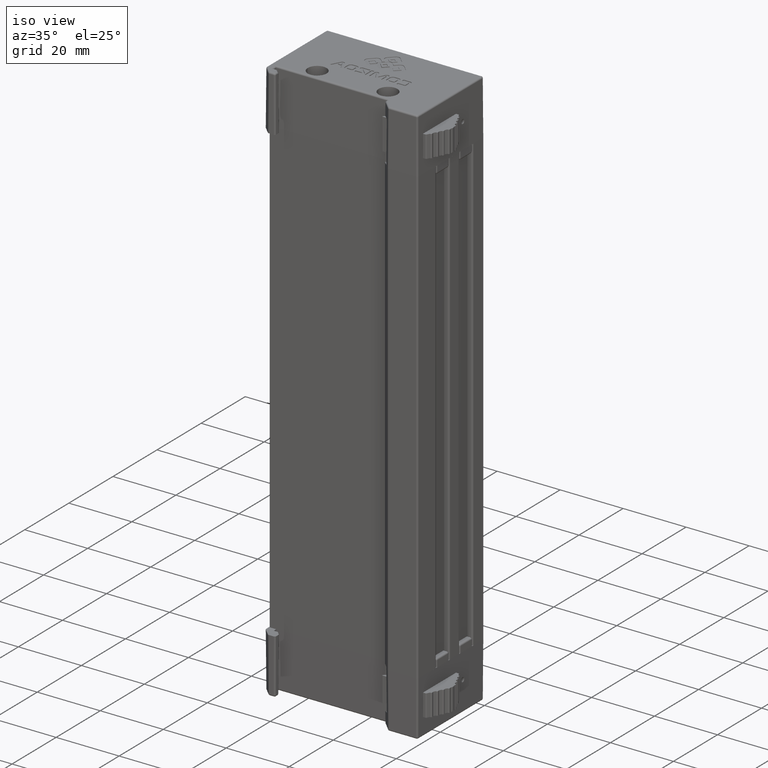
[diagram: clean part render]
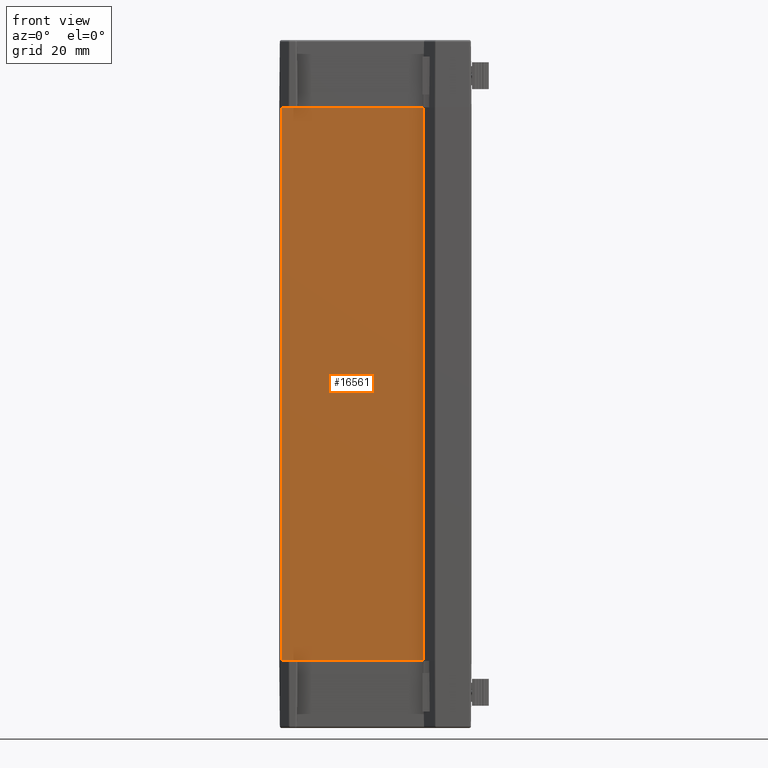
[diagram: tour spotlight — one face highlighted and labeled with its STEP entity id]
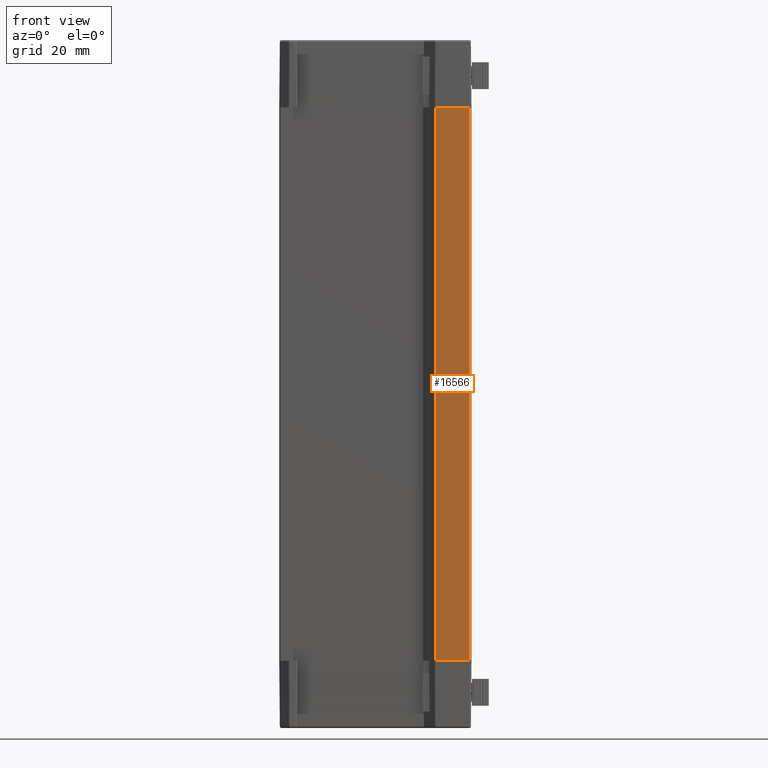
[diagram: tour spotlight — one face highlighted and labeled with its STEP entity id]
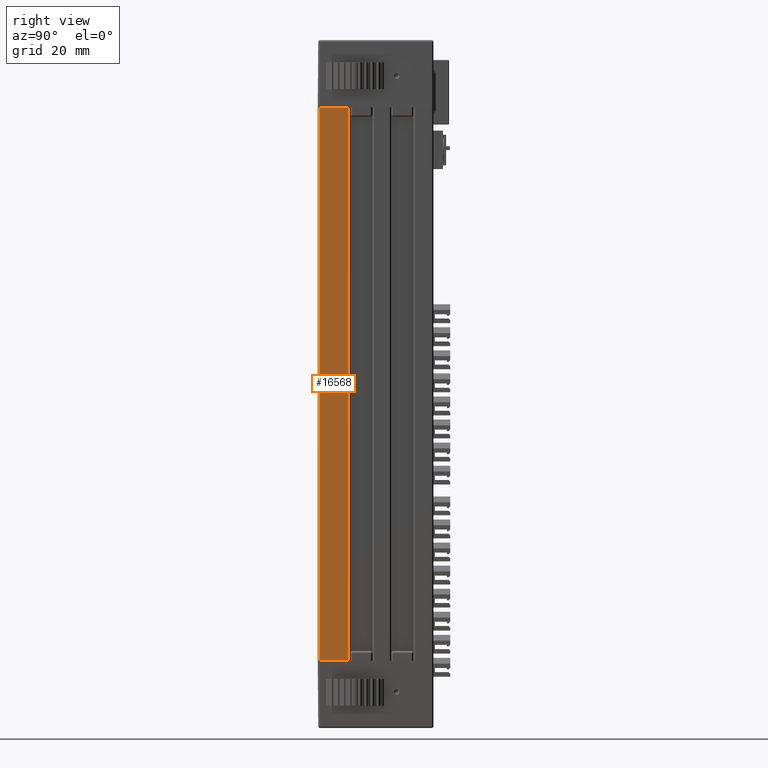
[diagram: tour spotlight — one face highlighted and labeled with its STEP entity id]
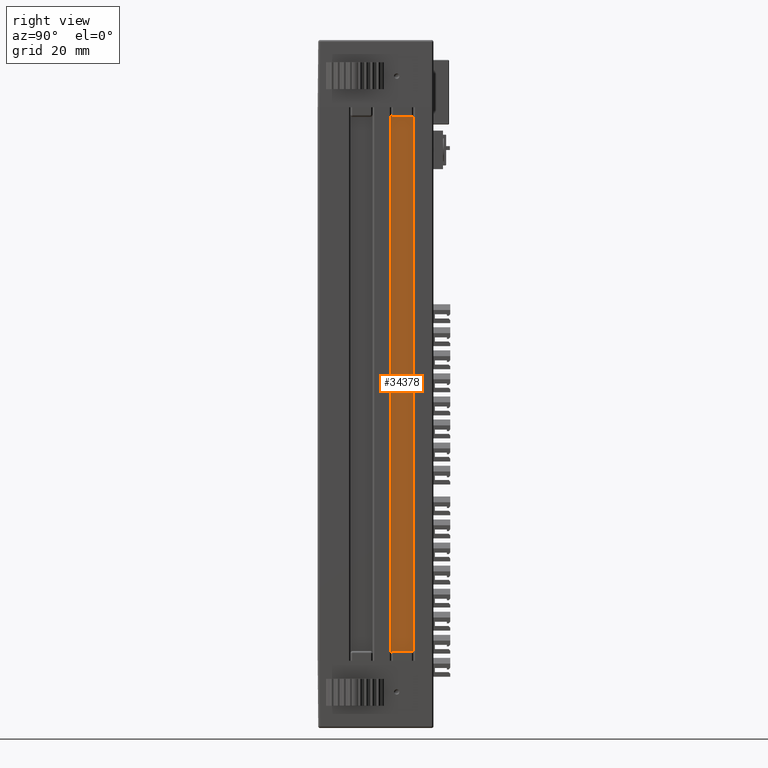
[diagram: tour spotlight — one face highlighted and labeled with its STEP entity id]
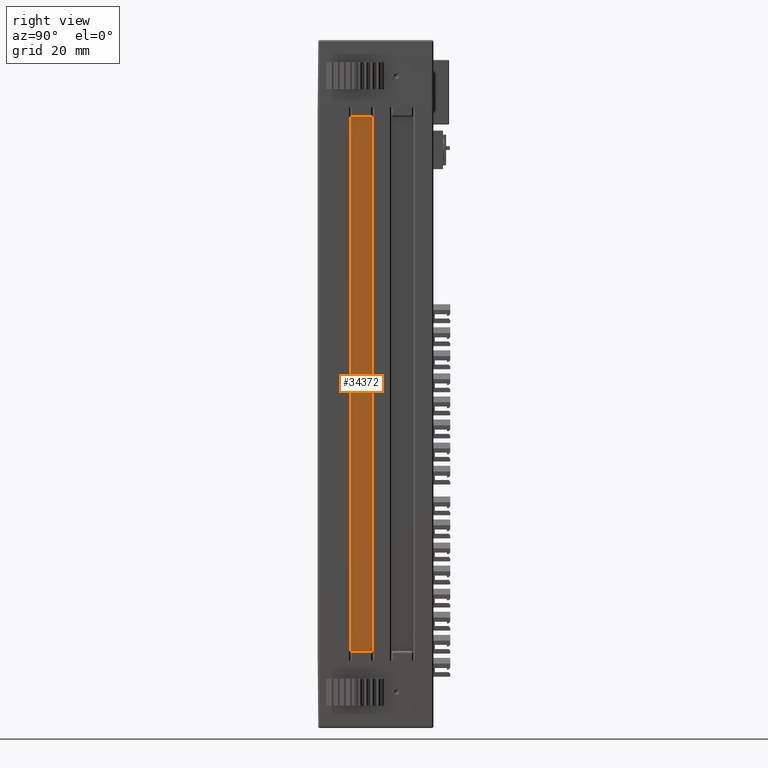
[diagram: tour spotlight — one face highlighted and labeled with its STEP entity id]
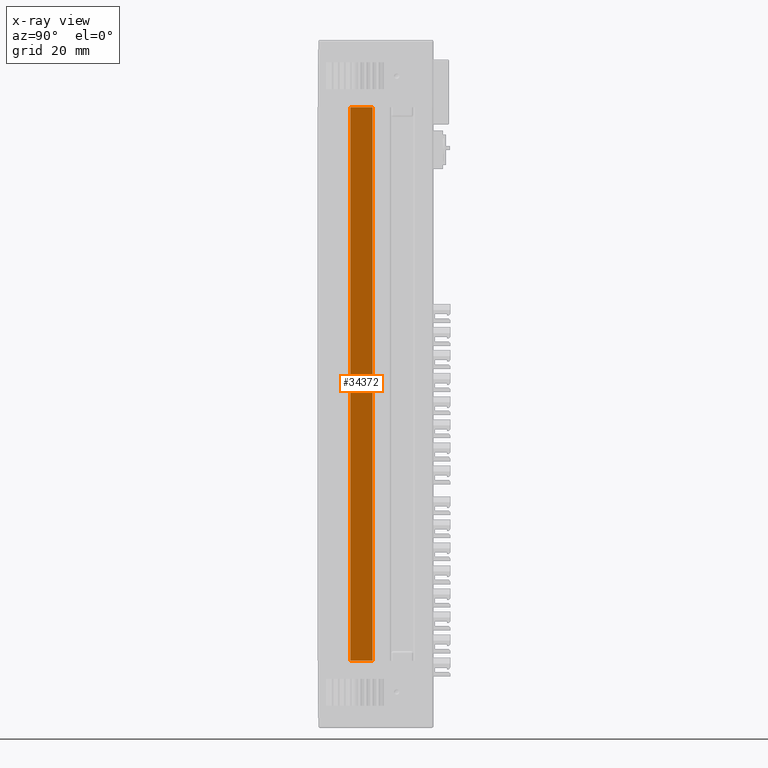
[diagram: x-ray of the same camera — body ghosted, this tour face saturated]
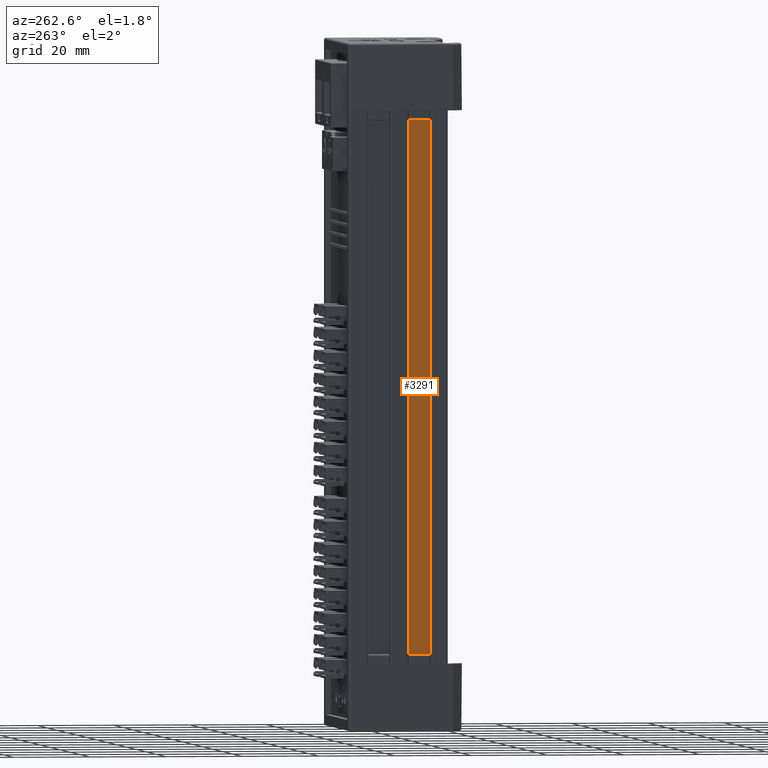
[diagram: tour spotlight — one face highlighted and labeled with its STEP entity id]
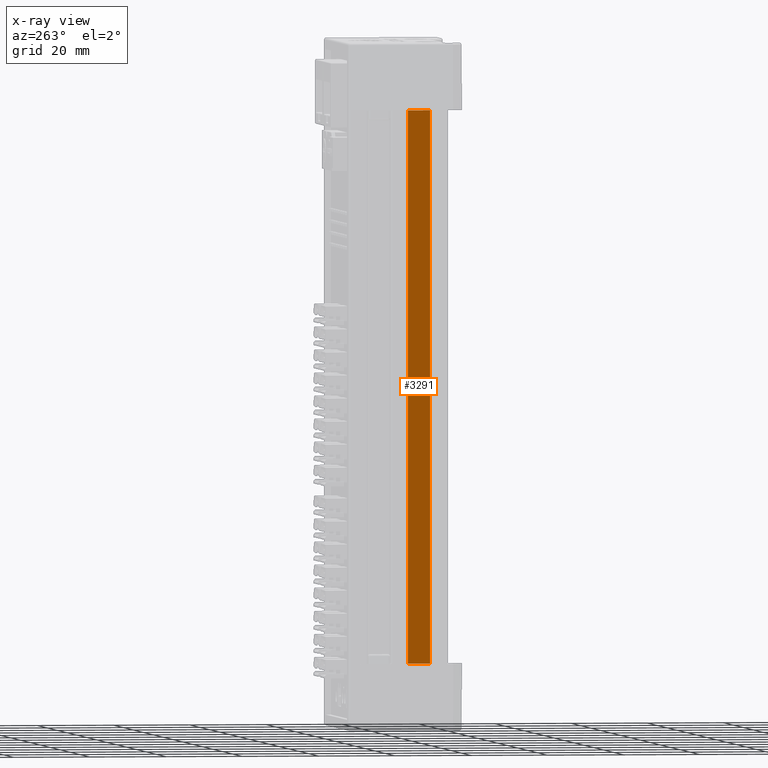
[diagram: x-ray of the same camera — body ghosted, this tour face saturated]
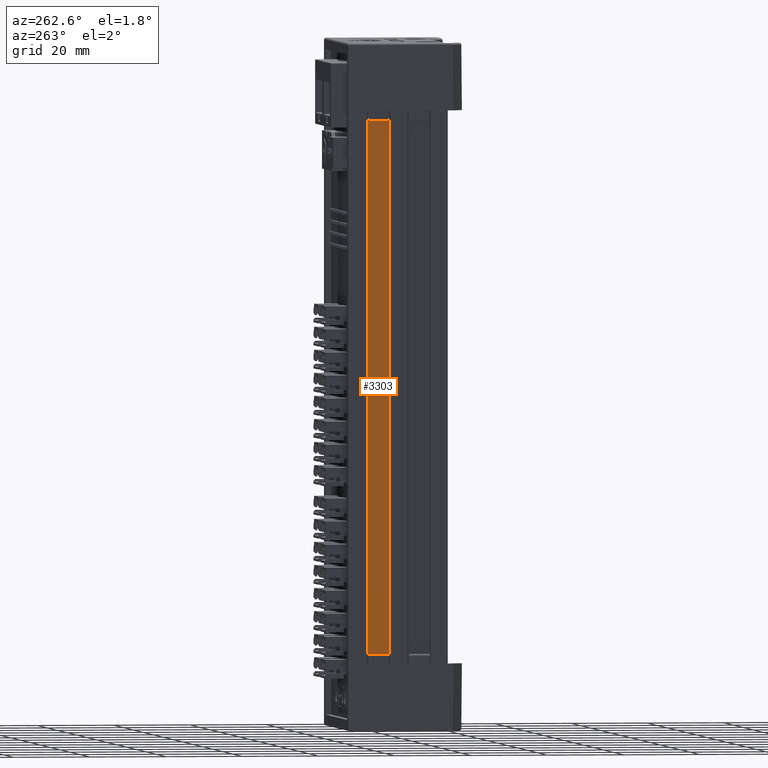
[diagram: tour spotlight — one face highlighted and labeled with its STEP entity id]
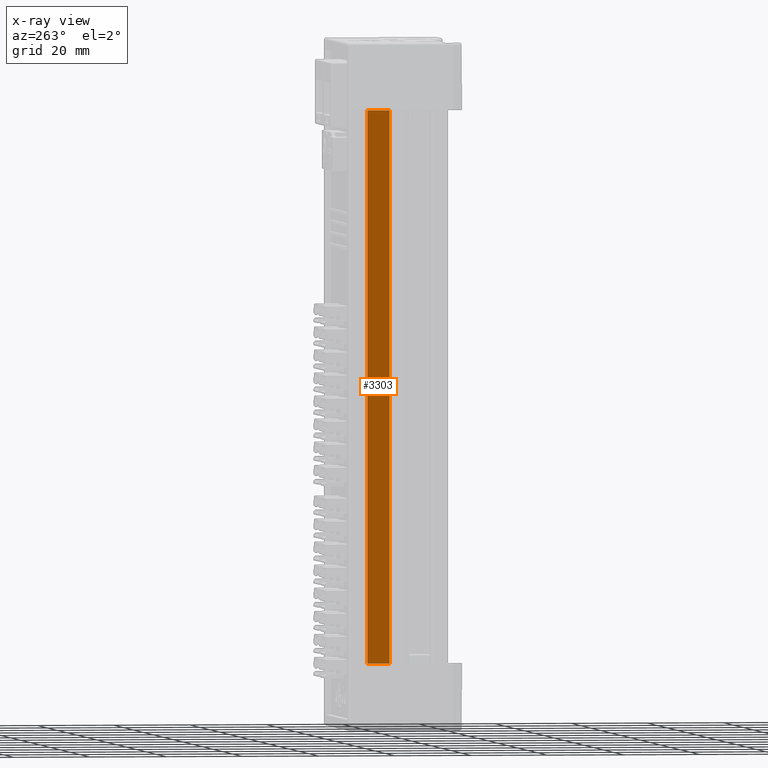
[diagram: x-ray of the same camera — body ghosted, this tour face saturated]
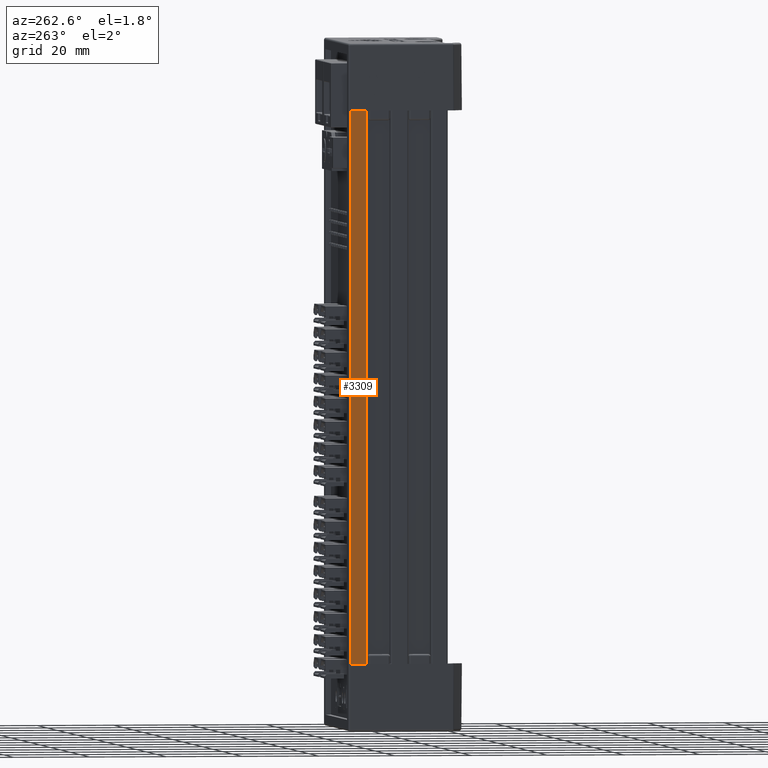
[diagram: tour spotlight — one face highlighted and labeled with its STEP entity id]
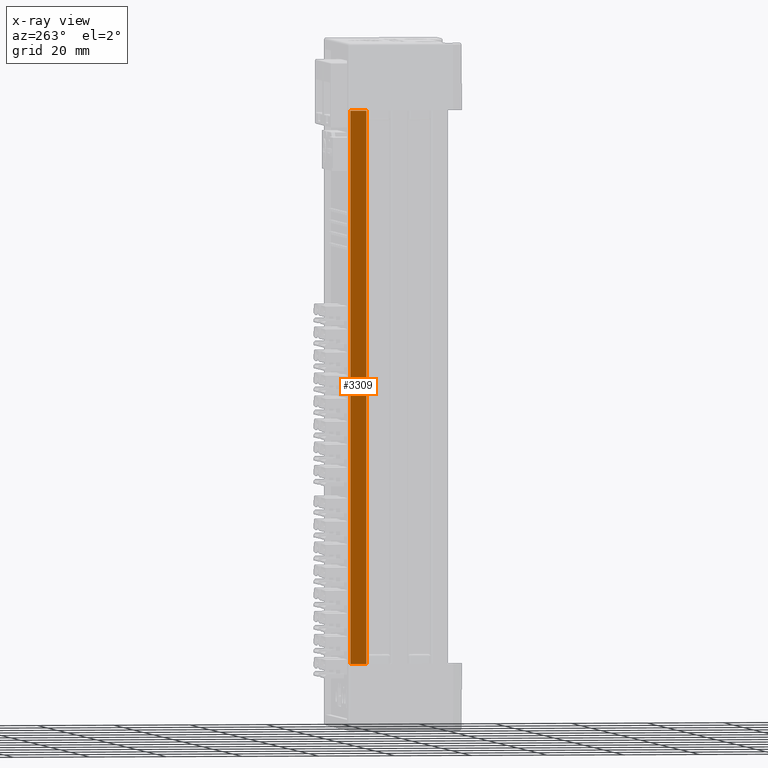
[diagram: x-ray of the same camera — body ghosted, this tour face saturated]
A machine part: a face-by-face anatomy tour. The part has 5268 B-rep faces; the first image is the clean iso view, then the 8 largest visible faces are spotlighted one at a time (largest first), each with its STEP entity span.

Face 1 — front view, entity #16561. In plain terms, the highlighted planar face has unit normal (0, -1, 0).
Definition (entity closure, byte-faithful):
#4626 = VERTEX_POINT ( 'NONE', #15402 ) ;
#4630 = VERTEX_POINT ( 'NONE', #15405 ) ;
#4631 = VERTEX_POINT ( 'NONE', #15406 ) ;
#4632 = VERTEX_POINT ( 'NONE', #15407 ) ;
#8282 = ORIENTED_EDGE ( 'NONE', *, *, #34419, .F. ) ;
#8287 = ORIENTED_EDGE ( 'NONE', *, *, #34401, .T. ) ;
#8292 = ORIENTED_EDGE ( 'NONE', *, *, #34409, .T. ) ;
#8300 = ORIENTED_EDGE ( 'NONE', *, *, #34406, .F. ) ;
#15402 = CARTESIAN_POINT ( 'NONE',  ( -24.50000000000000000, -26.10000000000000100, -109.4999999999999900 ) ) ;
#15405 = CARTESIAN_POINT ( 'NONE',  ( 12.49999999996753000, -26.10000000000000100, 34.50000000000000000 ) ) ;
#15406 = CARTESIAN_POINT ( 'NONE',  ( 12.49999999996753000, -26.10000000000000100, -109.4999999999999900 ) ) ;
#15407 = CARTESIAN_POINT ( 'NONE',  ( -24.50000000000000000, -26.10000000000000100, 34.50000000000000000 ) ) ;
#16561 = ADVANCED_FACE ( 'NONE', ( #31628 ), #22052, .T. ) ;
#22052 = PLANE ( 'NONE',  #31619 ) ;
#22053 = CARTESIAN_POINT ( 'NONE',  ( -24.50000000000000000, -26.10000000000000100, -109.4999999999999900 ) ) ;
#22054 = DIRECTION ( 'NONE',  ( 0.0000000000000000000, -1.000000000000000000, 0.0000000000000000000 ) ) ;
#22055 = DIRECTION ( 'NONE',  ( 0.0000000000000000000, -0.0000000000000000000, -1.000000000000000000 ) ) ;
#28802 = VECTOR ( 'NONE', #36322, 1000.000000000000000 ) ;
#28809 = VECTOR ( 'NONE', #36337, 1000.000000000000000 ) ;
#28811 = VECTOR ( 'NONE', #36346, 1000.000000000000000 ) ;
#28823 = VECTOR ( 'NONE', #36376, 1000.000000000000000 ) ;
#31619 = AXIS2_PLACEMENT_3D ( 'NONE', #22053, #22054, #22055 ) ;
#31628 = FACE_OUTER_BOUND ( 'NONE', #34696, .T. ) ;
#34401 = EDGE_CURVE ( 'NONE', #4626, #4631, #36320, .T. ) ;
#34406 = EDGE_CURVE ( 'NONE', #4632, #4630, #36335, .T. ) ;
#34409 = EDGE_CURVE ( 'NONE', #4631, #4630, #36344, .T. ) ;
#34419 = EDGE_CURVE ( 'NONE', #4626, #4632, #36374, .T. ) ;
#34696 = EDGE_LOOP ( 'NONE', ( #8300, #8282, #8287, #8292 ) ) ;
#36320 = LINE ( 'NONE', #36321, #28802 ) ;
#36321 = CARTESIAN_POINT ( 'NONE',  ( -24.50000000000000000, -26.10000000000000100, -109.4999999999999900 ) ) ;
#36322 = DIRECTION ( 'NONE',  ( 1.000000000000000000, 0.0000000000000000000, 0.0000000000000000000 ) ) ;
#36335 = LINE ( 'NONE', #36336, #28809 ) ;
#36336 = CARTESIAN_POINT ( 'NONE',  ( -24.50000000000000000, -26.10000000000000100, 34.50000000000000000 ) ) ;
#36337 = DIRECTION ( 'NONE',  ( 1.000000000000000000, 0.0000000000000000000, 0.0000000000000000000 ) ) ;
#36344 = LINE ( 'NONE', #36345, #28811 ) ;
#36345 = CARTESIAN_POINT ( 'NONE',  ( 12.49999999996753000, -26.10000000000000100, -109.4999999999999900 ) ) ;
#36346 = DIRECTION ( 'NONE',  ( 0.0000000000000000000, 0.0000000000000000000, 1.000000000000000000 ) ) ;
#36374 = LINE ( 'NONE', #36375, #28823 ) ;
#36375 = CARTESIAN_POINT ( 'NONE',  ( -24.50000000000000000, -26.10000000000000100, -109.4999999999999900 ) ) ;
#36376 = DIRECTION ( 'NONE',  ( 0.0000000000000000000, 0.0000000000000000000, 1.000000000000000000 ) ) ;

Face 2 — front view, entity #16566. In plain terms, the highlighted planar face has unit normal (0, -1, 0).
Definition (entity closure, byte-faithful):
#4643 = VERTEX_POINT ( 'NONE', #15414 ) ;
#4644 = VERTEX_POINT ( 'NONE', #15415 ) ;
#4645 = VERTEX_POINT ( 'NONE', #15416 ) ;
#4650 = VERTEX_POINT ( 'NONE', #15419 ) ;
#8285 = ORIENTED_EDGE ( 'NONE', *, *, #34410, .F. ) ;
#8289 = ORIENTED_EDGE ( 'NONE', *, *, #34385, .T. ) ;
#8298 = ORIENTED_EDGE ( 'NONE', *, *, #34398, .F. ) ;
#8302 = ORIENTED_EDGE ( 'NONE', *, *, #34387, .T. ) ;
#15414 = CARTESIAN_POINT ( 'NONE',  ( 24.50000000000000000, -30.10000000000000100, -109.4999999999999900 ) ) ;
#15415 = CARTESIAN_POINT ( 'NONE',  ( 15.70710678109999800, -30.09999999999999800, 34.50000000000000000 ) ) ;
#15416 = CARTESIAN_POINT ( 'NONE',  ( 15.70710678109999800, -30.09999999999999800, -109.4999999999999900 ) ) ;
#15419 = CARTESIAN_POINT ( 'NONE',  ( 24.50000000000000000, -30.10000000000000100, 34.50000000000000000 ) ) ;
#16566 = ADVANCED_FACE ( 'NONE', ( #31611 ), #22070, .T. ) ;
#22070 = PLANE ( 'NONE',  #31601 ) ;
#22071 = CARTESIAN_POINT ( 'NONE',  ( 15.70710678109999800, -30.10000000000000100, -109.4999999999999900 ) ) ;
#22072 = DIRECTION ( 'NONE',  ( 0.0000000000000000000, -1.000000000000000000, 0.0000000000000000000 ) ) ;
#22073 = DIRECTION ( 'NONE',  ( 0.0000000000000000000, -0.0000000000000000000, -1.000000000000000000 ) ) ;
#28786 = VECTOR ( 'NONE', #36274, 1000.000000000000000 ) ;
#28788 = VECTOR ( 'NONE', #36280, 1000.000000000000000 ) ;
#28799 = VECTOR ( 'NONE', #36313, 1000.000000000000000 ) ;
#28812 = VECTOR ( 'NONE', #36349, 1000.000000000000000 ) ;
#31601 = AXIS2_PLACEMENT_3D ( 'NONE', #22071, #22072, #22073 ) ;
#31611 = FACE_OUTER_BOUND ( 'NONE', #34691, .T. ) ;
#34385 = EDGE_CURVE ( 'NONE', #4643, #4650, #36272, .T. ) ;
#34387 = EDGE_CURVE ( 'NONE', #4645, #4643, #36278, .T. ) ;
#34398 = EDGE_CURVE ( 'NONE', #4645, #4644, #36311, .T. ) ;
#34410 = EDGE_CURVE ( 'NONE', #4644, #4650, #36347, .T. ) ;
#34691 = EDGE_LOOP ( 'NONE', ( #8285, #8298, #8302, #8289 ) ) ;
#36272 = LINE ( 'NONE', #36273, #28786 ) ;
#36273 = CARTESIAN_POINT ( 'NONE',  ( 24.50000000000000000, -30.10000000000000100, -109.4999999999999900 ) ) ;
#36274 = DIRECTION ( 'NONE',  ( 0.0000000000000000000, 0.0000000000000000000, 1.000000000000000000 ) ) ;
#36278 = LINE ( 'NONE', #36279, #28788 ) ;
#36279 = CARTESIAN_POINT ( 'NONE',  ( 15.70710678109999800, -30.10000000000000100, -109.4999999999999900 ) ) ;
#36280 = DIRECTION ( 'NONE',  ( 1.000000000000000000, 0.0000000000000000000, 0.0000000000000000000 ) ) ;
#36311 = LINE ( 'NONE', #36312, #28799 ) ;
#36312 = CARTESIAN_POINT ( 'NONE',  ( 15.70710678109999800, -30.09999999999999800, -109.4999999999999900 ) ) ;
#36313 = DIRECTION ( 'NONE',  ( 0.0000000000000000000, 0.0000000000000000000, 1.000000000000000000 ) ) ;
#36347 = LINE ( 'NONE', #36348, #28812 ) ;
#36348 = CARTESIAN_POINT ( 'NONE',  ( 15.70710678109999800, -30.10000000000000100, 34.50000000000000000 ) ) ;
#36349 = DIRECTION ( 'NONE',  ( 1.000000000000000000, 0.0000000000000000000, 0.0000000000000000000 ) ) ;

Face 3 — right view, entity #16568. In plain terms, the highlighted planar face has unit normal (1, 0, 0).
Definition (entity closure, byte-faithful):
#4646 = VERTEX_POINT ( 'NONE', #15417 ) ;
#4648 = VERTEX_POINT ( 'NONE', #15418 ) ;
#4737 = VERTEX_POINT ( 'NONE', #15479 ) ;
#4739 = VERTEX_POINT ( 'NONE', #15480 ) ;
#8293 = ORIENTED_EDGE ( 'NONE', *, *, #34390, .F. ) ;
#8296 = ORIENTED_EDGE ( 'NONE', *, *, #34384, .T. ) ;
#8313 = ORIENTED_EDGE ( 'NONE', *, *, #34402, .T. ) ;
#8315 = ORIENTED_EDGE ( 'NONE', *, *, #34408, .F. ) ;
#15417 = CARTESIAN_POINT ( 'NONE',  ( 25.00000000000000000, -29.60000000000000100, 34.50000000000000000 ) ) ;
#15418 = CARTESIAN_POINT ( 'NONE',  ( 25.00000000000000000, -29.60000000000000100, -109.4999999999999900 ) ) ;
#15479 = CARTESIAN_POINT ( 'NONE',  ( 25.00000000000000000, -22.10000000000000100, 34.50000000000000000 ) ) ;
#15480 = CARTESIAN_POINT ( 'NONE',  ( 25.00000000000000000, -22.10000000000000100, -109.4999999999999900 ) ) ;
#16568 = ADVANCED_FACE ( 'NONE', ( #31603 ), #22077, .T. ) ;
#22077 = PLANE ( 'NONE',  #31592 ) ;
#22078 = CARTESIAN_POINT ( 'NONE',  ( 25.00000000000000000, -29.60000000000000100, -109.4999999999999900 ) ) ;
#22079 = DIRECTION ( 'NONE',  ( 1.000000000000000000, 0.0000000000000000000, 0.0000000000000000000 ) ) ;
#22080 = DIRECTION ( 'NONE',  ( 0.0000000000000000000, 0.0000000000000000000, -1.000000000000000000 ) ) ;
#28785 = VECTOR ( 'NONE', #36271, 1000.000000000000000 ) ;
#28791 = VECTOR ( 'NONE', #36289, 1000.000000000000000 ) ;
#28803 = VECTOR ( 'NONE', #36325, 1000.000000000000000 ) ;
#28810 = VECTOR ( 'NONE', #36343, 1000.000000000000000 ) ;
#31592 = AXIS2_PLACEMENT_3D ( 'NONE', #22078, #22079, #22080 ) ;
#31603 = FACE_OUTER_BOUND ( 'NONE', #34694, .T. ) ;
#34384 = EDGE_CURVE ( 'NONE', #4648, #4739, #36269, .T. ) ;
#34390 = EDGE_CURVE ( 'NONE', #4646, #4737, #36287, .T. ) ;
#34402 = EDGE_CURVE ( 'NONE', #4739, #4737, #36323, .T. ) ;
#34408 = EDGE_CURVE ( 'NONE', #4648, #4646, #36341, .T. ) ;
#34694 = EDGE_LOOP ( 'NONE', ( #8293, #8315, #8296, #8313 ) ) ;
#36269 = LINE ( 'NONE', #36270, #28785 ) ;
#36270 = CARTESIAN_POINT ( 'NONE',  ( 25.00000000000000000, -29.60000000000000100, -109.4999999999999900 ) ) ;
#36271 = DIRECTION ( 'NONE',  ( 0.0000000000000000000, 1.000000000000000000, 0.0000000000000000000 ) ) ;
#36287 = LINE ( 'NONE', #36288, #28791 ) ;
#36288 = CARTESIAN_POINT ( 'NONE',  ( 25.00000000000000000, -29.60000000000000100, 34.50000000000000000 ) ) ;
#36289 = DIRECTION ( 'NONE',  ( 0.0000000000000000000, 1.000000000000000000, 0.0000000000000000000 ) ) ;
#36323 = LINE ( 'NONE', #36324, #28803 ) ;
#36324 = CARTESIAN_POINT ( 'NONE',  ( 25.00000000000000000, -22.10000000000000100, -109.4999999999999900 ) ) ;
#36325 = DIRECTION ( 'NONE',  ( 0.0000000000000000000, 0.0000000000000000000, 1.000000000000000000 ) ) ;
#36341 = LINE ( 'NONE', #36342, #28810 ) ;
#36342 = CARTESIAN_POINT ( 'NONE',  ( 25.00000000000000000, -29.60000000000000100, -109.4999999999999900 ) ) ;
#36343 = DIRECTION ( 'NONE',  ( 0.0000000000000000000, 0.0000000000000000000, 1.000000000000000000 ) ) ;

Face 4 — right view, entity #34378. In plain terms, the highlighted planar face has unit normal (1, 0, 0).
Definition (entity closure, byte-faithful):
#4429 = VERTEX_POINT ( 'NONE', #14432 ) ;
#4454 = VERTEX_POINT ( 'NONE', #14449 ) ;
#4509 = VERTEX_POINT ( 'NONE', #15325 ) ;
#4760 = VERTEX_POINT ( 'NONE', #15496 ) ;
#14432 = CARTESIAN_POINT ( 'NONE',  ( 23.40000000000000200, -11.00000000000000000, 34.50000000000000000 ) ) ;
#14449 = CARTESIAN_POINT ( 'NONE',  ( 23.40000000000000200, -5.200000000000001100, -109.4999999999999900 ) ) ;
#15325 = CARTESIAN_POINT ( 'NONE',  ( 23.40000000000000200, -5.200000000000001100, 34.50000000000000000 ) ) ;
#15496 = CARTESIAN_POINT ( 'NONE',  ( 23.40000000000000200, -11.00000000000000000, -109.4999999999999900 ) ) ;
#17289 = EDGE_CURVE ( 'NONE', #4760, #4454, #26466, .T. ) ;
#17290 = EDGE_CURVE ( 'NONE', #4429, #4509, #26469, .T. ) ;
#17291 = EDGE_CURVE ( 'NONE', #4760, #4429, #26472, .T. ) ;
#17294 = EDGE_CURVE ( 'NONE', #4454, #4509, #26481, .T. ) ;
#20673 = ORIENTED_EDGE ( 'NONE', *, *, #17294, .T. ) ;
#20675 = ORIENTED_EDGE ( 'NONE', *, *, #17291, .F. ) ;
#20677 = ORIENTED_EDGE ( 'NONE', *, *, #17289, .T. ) ;
#20679 = ORIENTED_EDGE ( 'NONE', *, *, #17290, .F. ) ;
#26089 = VECTOR ( 'NONE', #26468, 1000.000000000000000 ) ;
#26090 = VECTOR ( 'NONE', #26471, 1000.000000000000000 ) ;
#26091 = VECTOR ( 'NONE', #26474, 1000.000000000000000 ) ;
#26095 = VECTOR ( 'NONE', #26483, 1000.000000000000000 ) ;
#26466 = LINE ( 'NONE', #26467, #26089 ) ;
#26467 = CARTESIAN_POINT ( 'NONE',  ( 23.40000000000000200, -11.00000000000000000, -109.4999999999999900 ) ) ;
#26468 = DIRECTION ( 'NONE',  ( 0.0000000000000000000, 1.000000000000000000, 0.0000000000000000000 ) ) ;
#26469 = LINE ( 'NONE', #26470, #26090 ) ;
#26470 = CARTESIAN_POINT ( 'NONE',  ( 23.40000000000000200, -11.00000000000000000, 34.50000000000000000 ) ) ;
#26471 = DIRECTION ( 'NONE',  ( 0.0000000000000000000, 1.000000000000000000, 0.0000000000000000000 ) ) ;
#26472 = LINE ( 'NONE', #26473, #26091 ) ;
#26473 = CARTESIAN_POINT ( 'NONE',  ( 23.40000000000000200, -11.00000000000000000, -109.4999999999999900 ) ) ;
#26474 = DIRECTION ( 'NONE',  ( 0.0000000000000000000, 0.0000000000000000000, 1.000000000000000000 ) ) ;
#26481 = LINE ( 'NONE', #26482, #26095 ) ;
#26482 = CARTESIAN_POINT ( 'NONE',  ( 23.40000000000000200, -5.200000000000001100, -109.4999999999999900 ) ) ;
#26483 = DIRECTION ( 'NONE',  ( 0.0000000000000000000, 0.0000000000000000000, 1.000000000000000000 ) ) ;
#28772 = FACE_OUTER_BOUND ( 'NONE', #34683, .T. ) ;
#28775 = AXIS2_PLACEMENT_3D ( 'NONE', #36248, #36249, #36250 ) ;
#34378 = ADVANCED_FACE ( 'NONE', ( #28772 ), #36247, .T. ) ;
#34683 = EDGE_LOOP ( 'NONE', ( #20679, #20675, #20677, #20673 ) ) ;
#36247 = PLANE ( 'NONE',  #28775 ) ;
#36248 = CARTESIAN_POINT ( 'NONE',  ( 23.40000000000000200, -11.00000000000000000, -109.4999999999999900 ) ) ;
#36249 = DIRECTION ( 'NONE',  ( 1.000000000000000000, 0.0000000000000000000, 0.0000000000000000000 ) ) ;
#36250 = DIRECTION ( 'NONE',  ( 0.0000000000000000000, 0.0000000000000000000, -1.000000000000000000 ) ) ;

Face 5 — right view, entity #34372. An x-ray twin of the same camera follows (body ghosted, this face saturated) — the face is partly hidden behind the body. In plain terms, the highlighted planar face has unit normal (1, 0, 0).
Definition (entity closure, byte-faithful):
#4446 = VERTEX_POINT ( 'NONE', #14443 ) ;
#4553 = VERTEX_POINT ( 'NONE', #15354 ) ;
#4654 = VERTEX_POINT ( 'NONE', #15423 ) ;
#4728 = VERTEX_POINT ( 'NONE', #15471 ) ;
#14443 = CARTESIAN_POINT ( 'NONE',  ( 23.40000000000000200, -21.60000000000000100, -109.4999999999999900 ) ) ;
#15354 = CARTESIAN_POINT ( 'NONE',  ( 23.40000000000000200, -15.80000000000000100, 34.50000000000000000 ) ) ;
#15423 = CARTESIAN_POINT ( 'NONE',  ( 23.40000000000000200, -21.60000000000000100, 34.50000000000000000 ) ) ;
#15471 = CARTESIAN_POINT ( 'NONE',  ( 23.40000000000000200, -15.80000000000000100, -109.4999999999999900 ) ) ;
#17271 = EDGE_CURVE ( 'NONE', #4446, #4728, #24321, .T. ) ;
#17272 = EDGE_CURVE ( 'NONE', #4654, #4553, #24324, .T. ) ;
#17273 = EDGE_CURVE ( 'NONE', #4446, #4654, #24327, .T. ) ;
#17276 = EDGE_CURVE ( 'NONE', #4728, #4553, #24336, .T. ) ;
#20625 = ORIENTED_EDGE ( 'NONE', *, *, #17276, .T. ) ;
#20627 = ORIENTED_EDGE ( 'NONE', *, *, #17273, .F. ) ;
#20629 = ORIENTED_EDGE ( 'NONE', *, *, #17271, .T. ) ;
#20631 = ORIENTED_EDGE ( 'NONE', *, *, #17272, .F. ) ;
#24321 = LINE ( 'NONE', #24322, #26071 ) ;
#24322 = CARTESIAN_POINT ( 'NONE',  ( 23.40000000000000200, -21.60000000000000100, -109.4999999999999900 ) ) ;
#24323 = DIRECTION ( 'NONE',  ( 0.0000000000000000000, 1.000000000000000000, 0.0000000000000000000 ) ) ;
#24324 = LINE ( 'NONE', #24325, #26072 ) ;
#24325 = CARTESIAN_POINT ( 'NONE',  ( 23.40000000000000200, -21.60000000000000100, 34.50000000000000000 ) ) ;
#24326 = DIRECTION ( 'NONE',  ( 0.0000000000000000000, 1.000000000000000000, 0.0000000000000000000 ) ) ;
#24327 = LINE ( 'NONE', #24328, #26073 ) ;
#24328 = CARTESIAN_POINT ( 'NONE',  ( 23.40000000000000200, -21.60000000000000100, -109.4999999999999900 ) ) ;
#24329 = DIRECTION ( 'NONE',  ( 0.0000000000000000000, 0.0000000000000000000, 1.000000000000000000 ) ) ;
#24336 = LINE ( 'NONE', #24337, #26077 ) ;
#24337 = CARTESIAN_POINT ( 'NONE',  ( 23.40000000000000200, -15.80000000000000100, -109.4999999999999900 ) ) ;
#24338 = DIRECTION ( 'NONE',  ( 0.0000000000000000000, 0.0000000000000000000, 1.000000000000000000 ) ) ;
#26071 = VECTOR ( 'NONE', #24323, 1000.000000000000000 ) ;
#26072 = VECTOR ( 'NONE', #24326, 1000.000000000000000 ) ;
#26073 = VECTOR ( 'NONE', #24329, 1000.000000000000000 ) ;
#26077 = VECTOR ( 'NONE', #24338, 1000.000000000000000 ) ;
#28750 = FACE_OUTER_BOUND ( 'NONE', #34681, .T. ) ;
#28761 = AXIS2_PLACEMENT_3D ( 'NONE', #36226, #36227, #36228 ) ;
#34372 = ADVANCED_FACE ( 'NONE', ( #28750 ), #36225, .T. ) ;
#34681 = EDGE_LOOP ( 'NONE', ( #20631, #20627, #20629, #20625 ) ) ;
#36225 = PLANE ( 'NONE',  #28761 ) ;
#36226 = CARTESIAN_POINT ( 'NONE',  ( 23.40000000000000200, -21.60000000000000100, -109.4999999999999900 ) ) ;
#36227 = DIRECTION ( 'NONE',  ( 1.000000000000000000, 0.0000000000000000000, 0.0000000000000000000 ) ) ;
#36228 = DIRECTION ( 'NONE',  ( 0.0000000000000000000, 0.0000000000000000000, -1.000000000000000000 ) ) ;

Face 6 — auxiliary view, entity #3291. An x-ray twin of the same camera follows (body ghosted, this face saturated) — the face is partly hidden behind the body. In plain terms, the highlighted planar face has unit normal (-1, 0, 0).
Definition (entity closure, byte-faithful):
#3291 = ADVANCED_FACE ( 'NONE', ( #52479 ), #51667, .T. ) ;
#4456 = VERTEX_POINT ( 'NONE', #14450 ) ;
#4459 = VERTEX_POINT ( 'NONE', #14452 ) ;
#4656 = VERTEX_POINT ( 'NONE', #15424 ) ;
#4745 = VERTEX_POINT ( 'NONE', #15484 ) ;
#8367 = ORIENTED_EDGE ( 'NONE', *, *, #34395, .T. ) ;
#8373 = ORIENTED_EDGE ( 'NONE', *, *, #34529, .F. ) ;
#8389 = ORIENTED_EDGE ( 'NONE', *, *, #34518, .F. ) ;
#8392 = ORIENTED_EDGE ( 'NONE', *, *, #34512, .T. ) ;
#14450 = CARTESIAN_POINT ( 'NONE',  ( -23.40000000000000200, -21.60000000000000100, 34.50000000000000000 ) ) ;
#14452 = CARTESIAN_POINT ( 'NONE',  ( -23.40000000000000200, -21.60000000000000100, -109.4999999999999900 ) ) ;
#15424 = CARTESIAN_POINT ( 'NONE',  ( -23.40000000000000200, -15.80000000000000100, -109.4999999999999900 ) ) ;
#15484 = CARTESIAN_POINT ( 'NONE',  ( -23.40000000000000200, -15.80000000000000100, 34.50000000000000000 ) ) ;
#28797 = VECTOR ( 'NONE', #36304, 1000.000000000000000 ) ;
#34395 = EDGE_CURVE ( 'NONE', #4459, #4456, #36302, .T. ) ;
#34512 = EDGE_CURVE ( 'NONE', #4656, #4459, #36725, .T. ) ;
#34518 = EDGE_CURVE ( 'NONE', #4745, #4456, #36743, .T. ) ;
#34529 = EDGE_CURVE ( 'NONE', #4656, #4745, #36776, .T. ) ;
#34709 = EDGE_LOOP ( 'NONE', ( #8389, #8373, #8392, #8367 ) ) ;
#36302 = LINE ( 'NONE', #36303, #28797 ) ;
#36303 = CARTESIAN_POINT ( 'NONE',  ( -23.40000000000000200, -21.60000000000000100, -109.4999999999999900 ) ) ;
#36304 = DIRECTION ( 'NONE',  ( 0.0000000000000000000, 0.0000000000000000000, 1.000000000000000000 ) ) ;
#36725 = LINE ( 'NONE', #36726, #39366 ) ;
#36726 = CARTESIAN_POINT ( 'NONE',  ( -23.40000000000000200, -15.80000000000000100, -109.4999999999999900 ) ) ;
#36727 = DIRECTION ( 'NONE',  ( 0.0000000000000000000, -1.000000000000000000, 0.0000000000000000000 ) ) ;
#36743 = LINE ( 'NONE', #36744, #39383 ) ;
#36744 = CARTESIAN_POINT ( 'NONE',  ( -23.40000000000000200, -15.80000000000000100, 34.50000000000000000 ) ) ;
#36745 = DIRECTION ( 'NONE',  ( 0.0000000000000000000, -1.000000000000000000, 0.0000000000000000000 ) ) ;
#36776 = LINE ( 'NONE', #36778, #39412 ) ;
#36778 = CARTESIAN_POINT ( 'NONE',  ( -23.40000000000000200, -15.80000000000000100, -109.4999999999999900 ) ) ;
#36779 = DIRECTION ( 'NONE',  ( 0.0000000000000000000, 0.0000000000000000000, 1.000000000000000000 ) ) ;
#39366 = VECTOR ( 'NONE', #36727, 1000.000000000000000 ) ;
#39383 = VECTOR ( 'NONE', #36745, 1000.000000000000000 ) ;
#39412 = VECTOR ( 'NONE', #36779, 1000.000000000000000 ) ;
#51667 = PLANE ( 'NONE',  #52460 ) ;
#51668 = CARTESIAN_POINT ( 'NONE',  ( -23.40000000000000200, -15.80000000000000100, -109.4999999999999900 ) ) ;
#51669 = DIRECTION ( 'NONE',  ( -1.000000000000000000, 0.0000000000000000000, 0.0000000000000000000 ) ) ;
#51670 = DIRECTION ( 'NONE',  ( 0.0000000000000000000, 0.0000000000000000000, 1.000000000000000000 ) ) ;
#52460 = AXIS2_PLACEMENT_3D ( 'NONE', #51668, #51669, #51670 ) ;
#52479 = FACE_OUTER_BOUND ( 'NONE', #34709, .T. ) ;

Face 7 — auxiliary view, entity #3303. An x-ray twin of the same camera follows (body ghosted, this face saturated) — the face is partly hidden behind the body. In plain terms, the highlighted planar face has unit normal (-1, 0, 0).
Definition (entity closure, byte-faithful):
#3303 = ADVANCED_FACE ( 'NONE', ( #52432 ), #51707, .T. ) ;
#4336 = VERTEX_POINT ( 'NONE', #14370 ) ;
#4595 = VERTEX_POINT ( 'NONE', #15381 ) ;
#4596 = VERTEX_POINT ( 'NONE', #15382 ) ;
#4770 = VERTEX_POINT ( 'NONE', #15503 ) ;
#8334 = ORIENTED_EDGE ( 'NONE', *, *, #34527, .F. ) ;
#8340 = ORIENTED_EDGE ( 'NONE', *, *, #34530, .T. ) ;
#8343 = ORIENTED_EDGE ( 'NONE', *, *, #34486, .T. ) ;
#8390 = ORIENTED_EDGE ( 'NONE', *, *, #34494, .F. ) ;
#14370 = CARTESIAN_POINT ( 'NONE',  ( -23.40000000000000200, -11.00000000000000000, -109.4999999999999900 ) ) ;
#15381 = CARTESIAN_POINT ( 'NONE',  ( -23.40000000000000200, -5.200000000000001100, 34.50000000000000000 ) ) ;
#15382 = CARTESIAN_POINT ( 'NONE',  ( -23.40000000000000200, -5.200000000000001100, -109.4999999999999900 ) ) ;
#15503 = CARTESIAN_POINT ( 'NONE',  ( -23.40000000000000200, -11.00000000000000000, 34.50000000000000000 ) ) ;
#34486 = EDGE_CURVE ( 'NONE', #4596, #4336, #36647, .T. ) ;
#34494 = EDGE_CURVE ( 'NONE', #4595, #4770, #36671, .T. ) ;
#34527 = EDGE_CURVE ( 'NONE', #4596, #4595, #36770, .T. ) ;
#34530 = EDGE_CURVE ( 'NONE', #4336, #4770, #36781, .T. ) ;
#34689 = EDGE_LOOP ( 'NONE', ( #8390, #8334, #8343, #8340 ) ) ;
#36647 = LINE ( 'NONE', #36648, #39307 ) ;
#36648 = CARTESIAN_POINT ( 'NONE',  ( -23.40000000000000200, -5.200000000000001100, -109.4999999999999900 ) ) ;
#36649 = DIRECTION ( 'NONE',  ( 0.0000000000000000000, -1.000000000000000000, 0.0000000000000000000 ) ) ;
#36671 = LINE ( 'NONE', #36672, #39325 ) ;
#36672 = CARTESIAN_POINT ( 'NONE',  ( -23.40000000000000200, -5.200000000000001100, 34.50000000000000000 ) ) ;
#36673 = DIRECTION ( 'NONE',  ( 0.0000000000000000000, -1.000000000000000000, 0.0000000000000000000 ) ) ;
#36770 = LINE ( 'NONE', #36771, #39408 ) ;
#36771 = CARTESIAN_POINT ( 'NONE',  ( -23.40000000000000200, -5.200000000000001100, -109.4999999999999900 ) ) ;
#36773 = DIRECTION ( 'NONE',  ( 0.0000000000000000000, 0.0000000000000000000, 1.000000000000000000 ) ) ;
#36781 = LINE ( 'NONE', #36782, #39415 ) ;
#36782 = CARTESIAN_POINT ( 'NONE',  ( -23.40000000000000200, -11.00000000000000000, -109.4999999999999900 ) ) ;
#36784 = DIRECTION ( 'NONE',  ( 0.0000000000000000000, 0.0000000000000000000, 1.000000000000000000 ) ) ;
#39307 = VECTOR ( 'NONE', #36649, 1000.000000000000000 ) ;
#39325 = VECTOR ( 'NONE', #36673, 1000.000000000000000 ) ;
#39408 = VECTOR ( 'NONE', #36773, 1000.000000000000000 ) ;
#39415 = VECTOR ( 'NONE', #36784, 1000.000000000000000 ) ;
#51707 = PLANE ( 'NONE',  #52421 ) ;
#51708 = CARTESIAN_POINT ( 'NONE',  ( -23.40000000000000200, -5.200000000000001100, -109.4999999999999900 ) ) ;
#51709 = DIRECTION ( 'NONE',  ( -1.000000000000000000, 0.0000000000000000000, 0.0000000000000000000 ) ) ;
#51710 = DIRECTION ( 'NONE',  ( 0.0000000000000000000, 0.0000000000000000000, 1.000000000000000000 ) ) ;
#52421 = AXIS2_PLACEMENT_3D ( 'NONE', #51708, #51709, #51710 ) ;
#52432 = FACE_OUTER_BOUND ( 'NONE', #34689, .T. ) ;

Face 8 — auxiliary view, entity #3309. An x-ray twin of the same camera follows (body ghosted, this face saturated) — the face is partly hidden behind the body. In plain terms, the highlighted planar face has unit normal (-1, 0, 0).
Definition (entity closure, byte-faithful):
#3309 = ADVANCED_FACE ( 'NONE', ( #52414 ), #51727, .T. ) ;
#4586 = VERTEX_POINT ( 'NONE', #15375 ) ;
#4588 = VERTEX_POINT ( 'NONE', #15376 ) ;
#4591 = VERTEX_POINT ( 'NONE', #15379 ) ;
#4593 = VERTEX_POINT ( 'NONE', #15380 ) ;
#8346 = ORIENTED_EDGE ( 'NONE', *, *, #34499, .F. ) ;
#8350 = ORIENTED_EDGE ( 'NONE', *, *, #34495, .F. ) ;
#8351 = ORIENTED_EDGE ( 'NONE', *, *, #34497, .T. ) ;
#8352 = ORIENTED_EDGE ( 'NONE', *, *, #34491, .T. ) ;
#15375 = CARTESIAN_POINT ( 'NONE',  ( -25.00000000000000000, -0.4999999999999998900, 34.50000000000000000 ) ) ;
#15376 = CARTESIAN_POINT ( 'NONE',  ( -25.00000000000000000, -0.4999999999999998900, -109.4999999999999900 ) ) ;
#15379 = CARTESIAN_POINT ( 'NONE',  ( -25.00000000000000000, -4.700000000000001100, 34.50000000000000000 ) ) ;
#15380 = CARTESIAN_POINT ( 'NONE',  ( -25.00000000000000000, -4.700000000000001100, -109.4999999999999900 ) ) ;
#34491 = EDGE_CURVE ( 'NONE', #4593, #4591, #36662, .T. ) ;
#34495 = EDGE_CURVE ( 'NONE', #4586, #4591, #36674, .T. ) ;
#34497 = EDGE_CURVE ( 'NONE', #4588, #4593, #36680, .T. ) ;
#34499 = EDGE_CURVE ( 'NONE', #4588, #4586, #36686, .T. ) ;
#34712 = EDGE_LOOP ( 'NONE', ( #8350, #8346, #8351, #8352 ) ) ;
#36662 = LINE ( 'NONE', #36663, #39318 ) ;
#36663 = CARTESIAN_POINT ( 'NONE',  ( -25.00000000000000000, -4.700000000000001100, -109.4999999999999900 ) ) ;
#36664 = DIRECTION ( 'NONE',  ( 0.0000000000000000000, 0.0000000000000000000, 1.000000000000000000 ) ) ;
#36674 = LINE ( 'NONE', #36675, #39328 ) ;
#36675 = CARTESIAN_POINT ( 'NONE',  ( -25.00000000000000000, -0.5000000000000000000, 34.50000000000000000 ) ) ;
#36676 = DIRECTION ( 'NONE',  ( 0.0000000000000000000, -1.000000000000000000, 0.0000000000000000000 ) ) ;
#36680 = LINE ( 'NONE', #36681, #39332 ) ;
#36681 = CARTESIAN_POINT ( 'NONE',  ( -25.00000000000000000, -0.5000000000000000000, -109.4999999999999900 ) ) ;
#36682 = DIRECTION ( 'NONE',  ( 0.0000000000000000000, -1.000000000000000000, 0.0000000000000000000 ) ) ;
#36686 = LINE ( 'NONE', #36687, #39338 ) ;
#36687 = CARTESIAN_POINT ( 'NONE',  ( -25.00000000000000000, -0.4999999999999998900, -109.4999999999999900 ) ) ;
#36688 = DIRECTION ( 'NONE',  ( 0.0000000000000000000, 0.0000000000000000000, 1.000000000000000000 ) ) ;
#39318 = VECTOR ( 'NONE', #36664, 1000.000000000000000 ) ;
#39328 = VECTOR ( 'NONE', #36676, 1000.000000000000000 ) ;
#39332 = VECTOR ( 'NONE', #36682, 1000.000000000000000 ) ;
#39338 = VECTOR ( 'NONE', #36688, 1000.000000000000000 ) ;
#51727 = PLANE ( 'NONE',  #52401 ) ;
#51728 = CARTESIAN_POINT ( 'NONE',  ( -25.00000000000000000, -0.5000000000000000000, -109.4999999999999900 ) ) ;
#51729 = DIRECTION ( 'NONE',  ( -1.000000000000000000, 0.0000000000000000000, 0.0000000000000000000 ) ) ;
#51730 = DIRECTION ( 'NONE',  ( 0.0000000000000000000, 0.0000000000000000000, 1.000000000000000000 ) ) ;
#52401 = AXIS2_PLACEMENT_3D ( 'NONE', #51728, #51729, #51730 ) ;
#52414 = FACE_OUTER_BOUND ( 'NONE', #34712, .T. ) ;